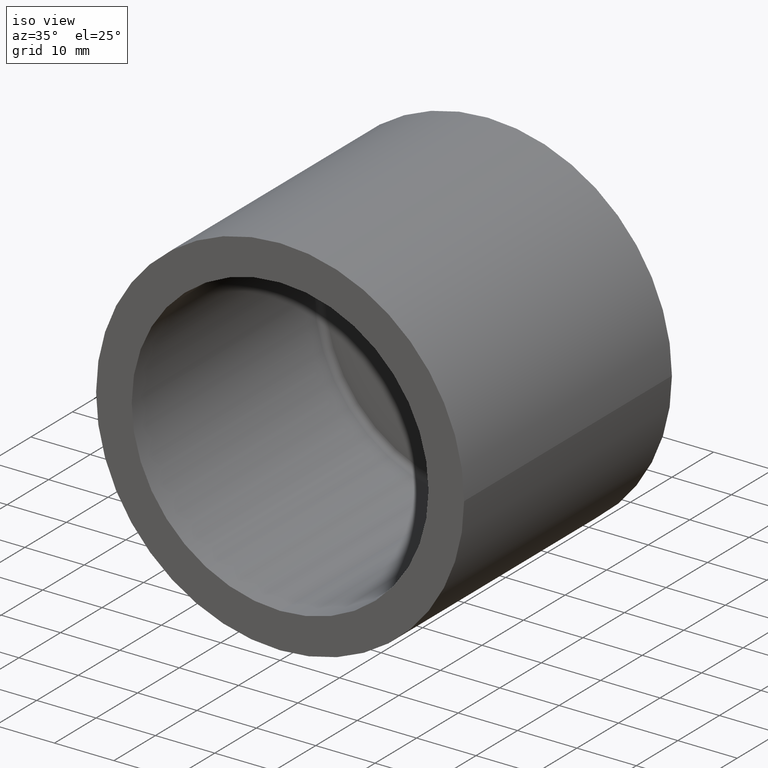
[diagram: clean part render]
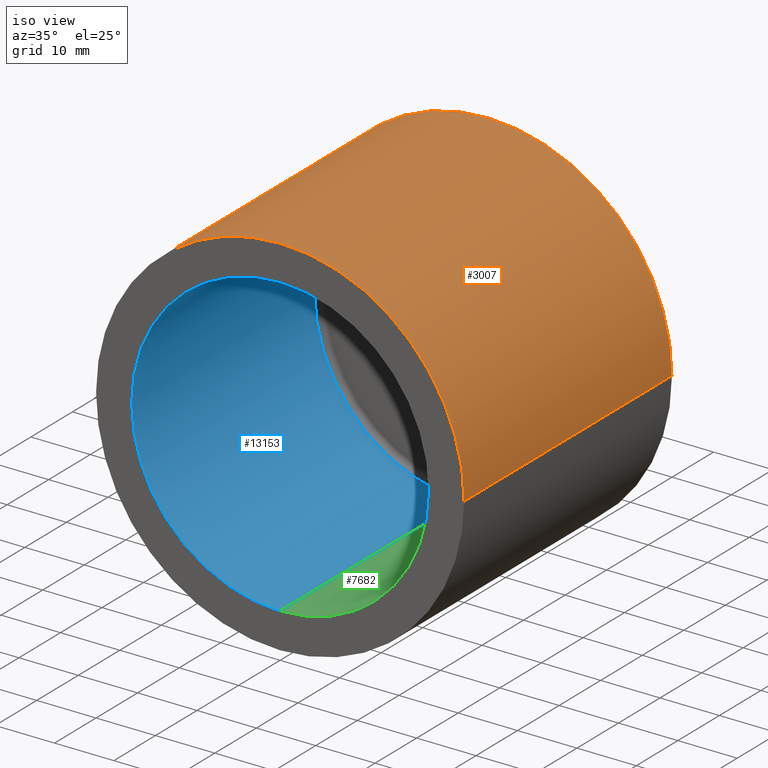
[diagram: same view with three faces highlighted in distinct colors, each labeled with its STEP entity id]
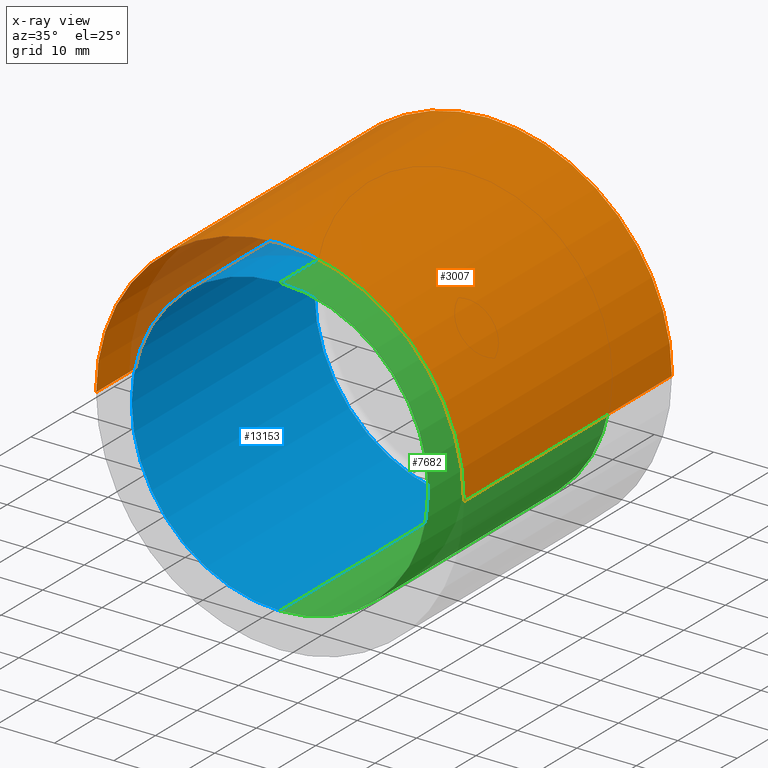
[diagram: x-ray of the same camera — body ghosted, the three highlighted faces saturated]
A machine part, iso view with three faces highlighted in distinct colors.
The next image is the same camera in x-ray (body ghosted, the three faces saturated) — at least one of them is partly hidden behind the body in this view.
Their STEP definitions:

[orange] entity #3007 — the highlighted cylindrical surface (partial cylindrical patch) has radius 31 mm, axis along (-0, 1, -0).
#1364 = EDGE_CURVE ( 'NONE', #13627, #5397, #3179, .T. ) ;
#1483 = CARTESIAN_POINT ( 'NONE',  ( 31.00000000000000000, 1.124100812432970997E-14, 3.796405077356795904E-15 ) ) ;
#3007 = ADVANCED_FACE ( 'NONE', ( #8613 ), #11885, .T. ) ;
#3179 = CIRCLE ( 'NONE', #4356, 31.00000000000000000 ) ;
#3285 = LINE ( 'NONE', #7096, #5628 ) ;
#3388 = EDGE_LOOP ( 'NONE', ( #6049, #9584, #13810, #10333 ) ) ;
#3486 = DIRECTION ( 'NONE',  ( -1.387778780781445676E-16, 1.000000000000000000, -0.000000000000000000 ) ) ;
#3893 = CARTESIAN_POINT ( 'NONE',  ( -31.00000000000001776, 50.00000000000000000, 0.000000000000000000 ) ) ;
#3904 = VECTOR ( 'NONE', #9018, 1000.000000000000000 ) ;
#4356 = AXIS2_PLACEMENT_3D ( 'NONE', #10278, #3486, #4635 ) ;
#4635 = DIRECTION ( 'NONE',  ( -1.000000000000000000, -1.387778780781445676E-16, 0.000000000000000000 ) ) ;
#4727 = CARTESIAN_POINT ( 'NONE',  ( -31.00000000000000000, 2.636779683484746784E-15, 0.000000000000000000 ) ) ;
#4796 = CARTESIAN_POINT ( 'NONE',  ( -6.938893903907228378E-15, 50.00000000000000711, 0.000000000000000000 ) ) ;
#5292 = CARTESIAN_POINT ( 'NONE',  ( 31.00000000000000711, 50.00000000000001421, 3.796405077356796693E-15 ) ) ;
#5397 = VERTEX_POINT ( 'NONE', #1483 ) ;
#5628 = VECTOR ( 'NONE', #10643, 1000.000000000000000 ) ;
#5978 = DIRECTION ( 'NONE',  ( -1.387778780781445676E-16, 1.000000000000000000, -0.000000000000000000 ) ) ;
#6049 = ORIENTED_EDGE ( 'NONE', *, *, #1364, .T. ) ;
#6071 = DIRECTION ( 'NONE',  ( -1.000000000000000000, -2.238352872228137184E-16, 0.000000000000000000 ) ) ;
#6230 = VERTEX_POINT ( 'NONE', #3893 ) ;
#7096 = CARTESIAN_POINT ( 'NONE',  ( -31.00000000000001421, 49.99999999999999289, 0.000000000000000000 ) ) ;
#7517 = EDGE_CURVE ( 'NONE', #6230, #12689, #9281, .T. ) ;
#7534 = EDGE_CURVE ( 'NONE', #13627, #6230, #3285, .T. ) ;
#8228 = DIRECTION ( 'NONE',  ( -1.000000000000000000, -2.238352872228137677E-16, 0.000000000000000000 ) ) ;
#8613 = FACE_OUTER_BOUND ( 'NONE', #3388, .T. ) ;
#9018 = DIRECTION ( 'NONE',  ( -1.387778780781445676E-16, 1.000000000000000000, -0.000000000000000000 ) ) ;
#9173 = LINE ( 'NONE', #12667, #3904 ) ;
#9281 = CIRCLE ( 'NONE', #11207, 31.00000000000001066 ) ;
#9584 = ORIENTED_EDGE ( 'NONE', *, *, #14772, .T. ) ;
#10278 = CARTESIAN_POINT ( 'NONE',  ( -7.703719777548943412E-31, 6.938893903907228378E-15, 0.000000000000000000 ) ) ;
#10333 = ORIENTED_EDGE ( 'NONE', *, *, #7534, .F. ) ;
#10643 = DIRECTION ( 'NONE',  ( -1.387778780781445676E-16, 1.000000000000000000, -0.000000000000000000 ) ) ;
#11207 = AXIS2_PLACEMENT_3D ( 'NONE', #4796, #12988, #6071 ) ;
#11885 = CYLINDRICAL_SURFACE ( 'NONE', #12072, 31.00000000000000711 ) ;
#12072 = AXIS2_PLACEMENT_3D ( 'NONE', #12753, #5978, #8228 ) ;
#12667 = CARTESIAN_POINT ( 'NONE',  ( 31.00000000000000000, 50.00000000000000711, 3.796405077356795904E-15 ) ) ;
#12689 = VERTEX_POINT ( 'NONE', #5292 ) ;
#12753 = CARTESIAN_POINT ( 'NONE',  ( -6.938893903907228378E-15, 50.00000000000000000, 0.000000000000000000 ) ) ;
#12988 = DIRECTION ( 'NONE',  ( -1.387778780781445676E-16, 1.000000000000000000, -0.000000000000000000 ) ) ;
#13627 = VERTEX_POINT ( 'NONE', #4727 ) ;
#13810 = ORIENTED_EDGE ( 'NONE', *, *, #7517, .F. ) ;
#14772 = EDGE_CURVE ( 'NONE', #5397, #12689, #9173, .T. ) ;

[blue] entity #13153 — the highlighted cylindrical surface (partial cylindrical patch) has radius 25 mm, axis along (-0, -1, -0).
#2 = CARTESIAN_POINT ( 'NONE',  ( -25.00000000000000000, 44.00000000000001421, 0.000000000000000000 ) ) ;
#171 = ORIENTED_EDGE ( 'NONE', *, *, #3167, .F. ) ;
#362 = VECTOR ( 'NONE', #14635, 1000.000000000000000 ) ;
#560 = DIRECTION ( 'NONE',  ( 0.000000000000000000, 0.000000000000000000, -1.000000000000000000 ) ) ;
#866 = ORIENTED_EDGE ( 'NONE', *, *, #5731, .T. ) ;
#1117 = EDGE_CURVE ( 'NONE', #11037, #12065, #4622, .T. ) ;
#1147 = CARTESIAN_POINT ( 'NONE',  ( 0.000000000000000000, 120.7106781186547977, -25.00000000000000000 ) ) ;
#1588 = DIRECTION ( 'NONE',  ( -0.000000000000000000, -1.000000000000000000, -0.000000000000000000 ) ) ;
#1683 = ORIENTED_EDGE ( 'NONE', *, *, #8627, .T. ) ;
#2040 = DIRECTION ( 'NONE',  ( 0.000000000000000000, -1.000000000000000000, 0.000000000000000000 ) ) ;
#2481 = ORIENTED_EDGE ( 'NONE', *, *, #4598, .T. ) ;
#2534 = DIRECTION ( 'NONE',  ( -1.387778780781445676E-16, 1.000000000000000000, -0.000000000000000000 ) ) ;
#3167 = EDGE_CURVE ( 'NONE', #14440, #5382, #11686, .T. ) ;
#3955 = CARTESIAN_POINT ( 'NONE',  ( 0.000000000000000000, 120.7106781186547977, 0.000000000000000000 ) ) ;
#4251 = CARTESIAN_POINT ( 'NONE',  ( 3.061616997868383043E-15, 44.00000000000001421, 25.00000000000000000 ) ) ;
#4598 = EDGE_CURVE ( 'NONE', #14087, #5382, #14800, .T. ) ;
#4622 = CIRCLE ( 'NONE', #9635, 25.00000000000000000 ) ;
#4853 = AXIS2_PLACEMENT_3D ( 'NONE', #6783, #2040, #7862 ) ;
#5133 = VECTOR ( 'NONE', #13855, 1000.000000000000000 ) ;
#5343 = DIRECTION ( 'NONE',  ( -1.000000000000000000, 0.000000000000000000, 0.000000000000000000 ) ) ;
#5382 = VERTEX_POINT ( 'NONE', #8196 ) ;
#5731 = EDGE_CURVE ( 'NONE', #14440, #11037, #8765, .T. ) ;
#6286 = CARTESIAN_POINT ( 'NONE',  ( 0.000000000000000000, 44.00000000000001421, -25.00000000000000000 ) ) ;
#6783 = CARTESIAN_POINT ( 'NONE',  ( 0.000000000000000000, 0.000000000000000000, 0.000000000000000000 ) ) ;
#6914 = LINE ( 'NONE', #12175, #362 ) ;
#7862 = DIRECTION ( 'NONE',  ( 0.000000000000000000, 0.000000000000000000, -1.000000000000000000 ) ) ;
#8196 = CARTESIAN_POINT ( 'NONE',  ( 0.000000000000000000, 0.000000000000000000, -25.00000000000000000 ) ) ;
#8582 = EDGE_LOOP ( 'NONE', ( #866, #11360, #1683, #2481, #171 ) ) ;
#8627 = EDGE_CURVE ( 'NONE', #12065, #14087, #6914, .T. ) ;
#8765 = CIRCLE ( 'NONE', #11688, 25.00000000000000000 ) ;
#8911 = AXIS2_PLACEMENT_3D ( 'NONE', #3955, #1588, #560 ) ;
#9478 = CARTESIAN_POINT ( 'NONE',  ( 0.000000000000000000, 44.00000000000001421, 0.000000000000000000 ) ) ;
#9635 = AXIS2_PLACEMENT_3D ( 'NONE', #11057, #14623, #5343 ) ;
#11037 = VERTEX_POINT ( 'NONE', #2 ) ;
#11057 = CARTESIAN_POINT ( 'NONE',  ( 0.000000000000000000, 44.00000000000001421, 0.000000000000000000 ) ) ;
#11360 = ORIENTED_EDGE ( 'NONE', *, *, #1117, .T. ) ;
#11686 = LINE ( 'NONE', #1147, #5133 ) ;
#11688 = AXIS2_PLACEMENT_3D ( 'NONE', #9478, #2534, #11964 ) ;
#11964 = DIRECTION ( 'NONE',  ( -1.000000000000000000, 0.000000000000000000, 0.000000000000000000 ) ) ;
#12065 = VERTEX_POINT ( 'NONE', #4251 ) ;
#12175 = CARTESIAN_POINT ( 'NONE',  ( 3.061616997868383043E-15, 120.7106781186547977, 25.00000000000000000 ) ) ;
#12705 = CARTESIAN_POINT ( 'NONE',  ( 3.061616997868383043E-15, 0.000000000000000000, 25.00000000000000000 ) ) ;
#12834 = FACE_OUTER_BOUND ( 'NONE', #8582, .T. ) ;
#13153 = ADVANCED_FACE ( 'NONE', ( #12834 ), #13561, .F. ) ;
#13561 = CYLINDRICAL_SURFACE ( 'NONE', #8911, 25.00000000000000000 ) ;
#13855 = DIRECTION ( 'NONE',  ( -0.000000000000000000, -1.000000000000000000, -0.000000000000000000 ) ) ;
#14087 = VERTEX_POINT ( 'NONE', #12705 ) ;
#14440 = VERTEX_POINT ( 'NONE', #6286 ) ;
#14623 = DIRECTION ( 'NONE',  ( -1.387778780781445676E-16, 1.000000000000000000, -0.000000000000000000 ) ) ;
#14635 = DIRECTION ( 'NONE',  ( -0.000000000000000000, -1.000000000000000000, -0.000000000000000000 ) ) ;
#14800 = CIRCLE ( 'NONE', #4853, 25.00000000000000000 ) ;

[green] entity #7682 — the highlighted cylindrical surface (partial cylindrical patch) has radius 25 mm, axis along (-0, -1, -0).
#304 = AXIS2_PLACEMENT_3D ( 'NONE', #13006, #8448, #5991 ) ;
#362 = VECTOR ( 'NONE', #14635, 1000.000000000000000 ) ;
#549 = FACE_OUTER_BOUND ( 'NONE', #14287, .T. ) ;
#769 = CIRCLE ( 'NONE', #304, 25.00000000000000000 ) ;
#909 = VERTEX_POINT ( 'NONE', #10748 ) ;
#1147 = CARTESIAN_POINT ( 'NONE',  ( 0.000000000000000000, 120.7106781186547977, -25.00000000000000000 ) ) ;
#1837 = CYLINDRICAL_SURFACE ( 'NONE', #12189, 25.00000000000000000 ) ;
#2079 = CARTESIAN_POINT ( 'NONE',  ( 0.000000000000000000, 120.7106781186547977, 0.000000000000000000 ) ) ;
#2098 = AXIS2_PLACEMENT_3D ( 'NONE', #14572, #12813, #10724 ) ;
#2743 = DIRECTION ( 'NONE',  ( 0.000000000000000000, 0.000000000000000000, -1.000000000000000000 ) ) ;
#3167 = EDGE_CURVE ( 'NONE', #14440, #5382, #11686, .T. ) ;
#3192 = ORIENTED_EDGE ( 'NONE', *, *, #14035, .T. ) ;
#4251 = CARTESIAN_POINT ( 'NONE',  ( 3.061616997868383043E-15, 44.00000000000001421, 25.00000000000000000 ) ) ;
#4920 = ORIENTED_EDGE ( 'NONE', *, *, #14653, .T. ) ;
#5133 = VECTOR ( 'NONE', #13855, 1000.000000000000000 ) ;
#5382 = VERTEX_POINT ( 'NONE', #8196 ) ;
#5438 = EDGE_CURVE ( 'NONE', #12065, #909, #769, .T. ) ;
#5991 = DIRECTION ( 'NONE',  ( -1.000000000000000000, 0.000000000000000000, 0.000000000000000000 ) ) ;
#6286 = CARTESIAN_POINT ( 'NONE',  ( 0.000000000000000000, 44.00000000000001421, -25.00000000000000000 ) ) ;
#6914 = LINE ( 'NONE', #12175, #362 ) ;
#7682 = ADVANCED_FACE ( 'NONE', ( #549 ), #1837, .F. ) ;
#8102 = ORIENTED_EDGE ( 'NONE', *, *, #3167, .T. ) ;
#8196 = CARTESIAN_POINT ( 'NONE',  ( 0.000000000000000000, 0.000000000000000000, -25.00000000000000000 ) ) ;
#8448 = DIRECTION ( 'NONE',  ( -1.387778780781445676E-16, 1.000000000000000000, -0.000000000000000000 ) ) ;
#8627 = EDGE_CURVE ( 'NONE', #12065, #14087, #6914, .T. ) ;
#8877 = ORIENTED_EDGE ( 'NONE', *, *, #5438, .T. ) ;
#8978 = DIRECTION ( 'NONE',  ( 0.000000000000000000, 0.000000000000000000, -1.000000000000000000 ) ) ;
#9009 = AXIS2_PLACEMENT_3D ( 'NONE', #14324, #9778, #2743 ) ;
#9533 = CIRCLE ( 'NONE', #9009, 25.00000000000000000 ) ;
#9778 = DIRECTION ( 'NONE',  ( 0.000000000000000000, -1.000000000000000000, 0.000000000000000000 ) ) ;
#10724 = DIRECTION ( 'NONE',  ( -1.000000000000000000, 0.000000000000000000, 0.000000000000000000 ) ) ;
#10748 = CARTESIAN_POINT ( 'NONE',  ( 25.00000000000000000, 44.00000000000001421, 3.061616997868383043E-15 ) ) ;
#11351 = DIRECTION ( 'NONE',  ( -0.000000000000000000, -1.000000000000000000, -0.000000000000000000 ) ) ;
#11686 = LINE ( 'NONE', #1147, #5133 ) ;
#12065 = VERTEX_POINT ( 'NONE', #4251 ) ;
#12175 = CARTESIAN_POINT ( 'NONE',  ( 3.061616997868383043E-15, 120.7106781186547977, 25.00000000000000000 ) ) ;
#12189 = AXIS2_PLACEMENT_3D ( 'NONE', #2079, #11351, #8978 ) ;
#12705 = CARTESIAN_POINT ( 'NONE',  ( 3.061616997868383043E-15, 0.000000000000000000, 25.00000000000000000 ) ) ;
#12813 = DIRECTION ( 'NONE',  ( -1.387778780781445676E-16, 1.000000000000000000, -0.000000000000000000 ) ) ;
#13006 = CARTESIAN_POINT ( 'NONE',  ( 0.000000000000000000, 44.00000000000001421, 0.000000000000000000 ) ) ;
#13855 = DIRECTION ( 'NONE',  ( -0.000000000000000000, -1.000000000000000000, -0.000000000000000000 ) ) ;
#14035 = EDGE_CURVE ( 'NONE', #909, #14440, #14834, .T. ) ;
#14087 = VERTEX_POINT ( 'NONE', #12705 ) ;
#14287 = EDGE_LOOP ( 'NONE', ( #14717, #8877, #3192, #8102, #4920 ) ) ;
#14324 = CARTESIAN_POINT ( 'NONE',  ( 0.000000000000000000, 0.000000000000000000, 0.000000000000000000 ) ) ;
#14440 = VERTEX_POINT ( 'NONE', #6286 ) ;
#14572 = CARTESIAN_POINT ( 'NONE',  ( 0.000000000000000000, 44.00000000000001421, 0.000000000000000000 ) ) ;
#14635 = DIRECTION ( 'NONE',  ( -0.000000000000000000, -1.000000000000000000, -0.000000000000000000 ) ) ;
#14653 = EDGE_CURVE ( 'NONE', #5382, #14087, #9533, .T. ) ;
#14717 = ORIENTED_EDGE ( 'NONE', *, *, #8627, .F. ) ;
#14834 = CIRCLE ( 'NONE', #2098, 25.00000000000000000 ) ;